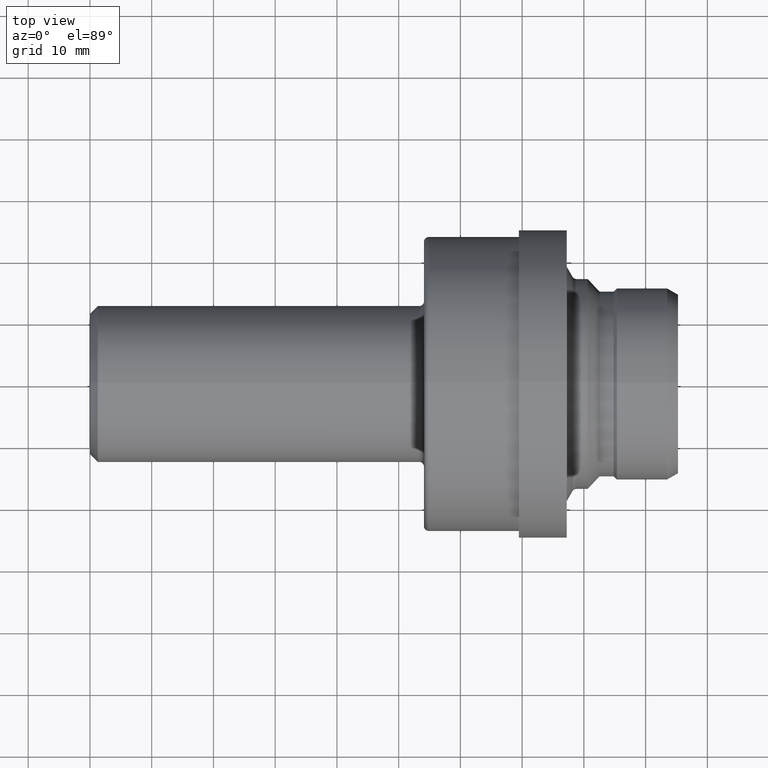
[diagram: clean part render]
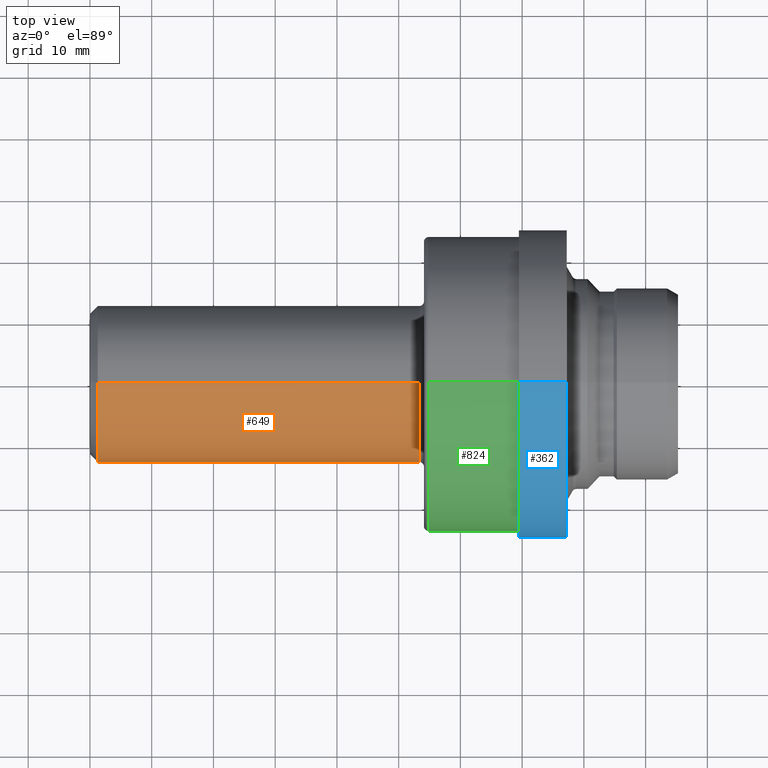
[diagram: same view with three faces highlighted in distinct colors, each labeled with its STEP entity id]
A machine part, top view with three faces highlighted in distinct colors.
Their STEP definitions:

[orange] entity #649 — the highlighted cylindrical surface (partial cylindrical patch) has radius 12.6962 mm, axis along (-1, -0, -0).
#3 = CARTESIAN_POINT ( 'NONE',  ( 2.100000000000000089, 6.305094045410148139E-17, -0.4998500000000000165 ) ) ;
#11 = CARTESIAN_POINT ( 'NONE',  ( 0.0000000000000000000, 0.0000000000000000000, 0.0000000000000000000 ) ) ;
#40 = LINE ( 'NONE', #535, #417 ) ;
#50 = LINE ( 'NONE', #222, #815 ) ;
#56 = EDGE_CURVE ( 'NONE', #661, #425, #424, .T. ) ;
#63 = EDGE_CURVE ( 'NONE', #466, #115, #706, .T. ) ;
#115 = VERTEX_POINT ( 'NONE', #545 ) ;
#145 = CYLINDRICAL_SURFACE ( 'NONE', #853, 0.4998500000000000165 ) ;
#222 = CARTESIAN_POINT ( 'NONE',  ( 0.0000000000000000000, 0.0000000000000000000, 0.4998500000000000165 ) ) ;
#269 = ORIENTED_EDGE ( 'NONE', *, *, #63, .F. ) ;
#274 = AXIS2_PLACEMENT_3D ( 'NONE', #321, #600, #602 ) ;
#321 = CARTESIAN_POINT ( 'NONE',  ( 0.05000000000000000278, 0.0000000000000000000, 0.0000000000000000000 ) ) ;
#377 = ORIENTED_EDGE ( 'NONE', *, *, #56, .T. ) ;
#399 = DIRECTION ( 'NONE',  ( -1.000000000000000000, -0.0000000000000000000, -0.0000000000000000000 ) ) ;
#412 = CARTESIAN_POINT ( 'NONE',  ( 2.100000000000000089, 0.0000000000000000000, 0.0000000000000000000 ) ) ;
#417 = VECTOR ( 'NONE', #522, 39.37007874015748143 ) ;
#424 = CIRCLE ( 'NONE', #634, 0.4998500000000000165 ) ;
#425 = VERTEX_POINT ( 'NONE', #575 ) ;
#446 = EDGE_LOOP ( 'NONE', ( #520, #377, #767, #269 ) ) ;
#466 = VERTEX_POINT ( 'NONE', #536 ) ;
#473 = FACE_OUTER_BOUND ( 'NONE', #446, .T. ) ;
#497 = DIRECTION ( 'NONE',  ( -1.000000000000000000, -0.0000000000000000000, -0.0000000000000000000 ) ) ;
#508 = EDGE_CURVE ( 'NONE', #661, #466, #40, .T. ) ;
#520 = ORIENTED_EDGE ( 'NONE', *, *, #508, .F. ) ;
#522 = DIRECTION ( 'NONE',  ( -1.000000000000000000, -0.0000000000000000000, -0.0000000000000000000 ) ) ;
#535 = CARTESIAN_POINT ( 'NONE',  ( 0.0000000000000000000, 6.121397025538045565E-17, -0.4998500000000000165 ) ) ;
#536 = CARTESIAN_POINT ( 'NONE',  ( 0.05000000000000000278, 6.121397025538045565E-17, -0.4998500000000000165 ) ) ;
#545 = CARTESIAN_POINT ( 'NONE',  ( 0.05000000000000000278, 0.0000000000000000000, 0.4998500000000000165 ) ) ;
#575 = CARTESIAN_POINT ( 'NONE',  ( 2.100000000000000089, 0.0000000000000000000, 0.4998500000000000165 ) ) ;
#600 = DIRECTION ( 'NONE',  ( -1.000000000000000000, -0.0000000000000000000, -0.0000000000000000000 ) ) ;
#602 = DIRECTION ( 'NONE',  ( 0.0000000000000000000, 0.0000000000000000000, 1.000000000000000000 ) ) ;
#622 = DIRECTION ( 'NONE',  ( 0.0000000000000000000, 0.0000000000000000000, 1.000000000000000000 ) ) ;
#634 = AXIS2_PLACEMENT_3D ( 'NONE', #412, #399, #622 ) ;
#649 = ADVANCED_FACE ( 'NONE', ( #473 ), #145, .T. ) ;
#661 = VERTEX_POINT ( 'NONE', #3 ) ;
#692 = EDGE_CURVE ( 'NONE', #425, #115, #50, .T. ) ;
#706 = CIRCLE ( 'NONE', #274, 0.4998500000000000165 ) ;
#730 = DIRECTION ( 'NONE',  ( 0.0000000000000000000, 0.0000000000000000000, 1.000000000000000000 ) ) ;
#767 = ORIENTED_EDGE ( 'NONE', *, *, #692, .T. ) ;
#815 = VECTOR ( 'NONE', #497, 39.37007874015748143 ) ;
#853 = AXIS2_PLACEMENT_3D ( 'NONE', #11, #856, #730 ) ;
#856 = DIRECTION ( 'NONE',  ( -1.000000000000000000, -0.0000000000000000000, -0.0000000000000000000 ) ) ;

[blue] entity #362 — the highlighted cylindrical surface (partial cylindrical patch) has radius 24.9555 mm, axis along (-1, -0, -0).
#60 = VERTEX_POINT ( 'NONE', #387 ) ;
#80 = VERTEX_POINT ( 'NONE', #604 ) ;
#99 = DIRECTION ( 'NONE',  ( -1.000000000000000000, -0.0000000000000000000, -0.0000000000000000000 ) ) ;
#112 = ORIENTED_EDGE ( 'NONE', *, *, #741, .F. ) ;
#113 = VECTOR ( 'NONE', #164, 39.37007874015748143 ) ;
#164 = DIRECTION ( 'NONE',  ( -1.000000000000000000, -0.0000000000000000000, -0.0000000000000000000 ) ) ;
#202 = CYLINDRICAL_SURFACE ( 'NONE', #672, 0.9825000000000001510 ) ;
#203 = EDGE_CURVE ( 'NONE', #474, #561, #665, .T. ) ;
#215 = DIRECTION ( 'NONE',  ( -1.000000000000000000, -0.0000000000000000000, -0.0000000000000000000 ) ) ;
#219 = EDGE_CURVE ( 'NONE', #80, #561, #375, .T. ) ;
#230 = CARTESIAN_POINT ( 'NONE',  ( 3.040000000000000480, 0.0000000000000000000, 0.0000000000000000000 ) ) ;
#319 = FACE_OUTER_BOUND ( 'NONE', #848, .T. ) ;
#327 = ORIENTED_EDGE ( 'NONE', *, *, #219, .T. ) ;
#333 = EDGE_CURVE ( 'NONE', #60, #80, #550, .T. ) ;
#351 = AXIS2_PLACEMENT_3D ( 'NONE', #368, #774, #700 ) ;
#362 = ADVANCED_FACE ( 'NONE', ( #319 ), #202, .T. ) ;
#368 = CARTESIAN_POINT ( 'NONE',  ( 2.735000000000000320, 0.0000000000000000000, 0.0000000000000000000 ) ) ;
#375 = LINE ( 'NONE', #729, #609 ) ;
#387 = CARTESIAN_POINT ( 'NONE',  ( 3.040000000000000480, 1.203215480162274635E-16, -0.9825000000000001510 ) ) ;
#404 = AXIS2_PLACEMENT_3D ( 'NONE', #230, #215, #858 ) ;
#474 = VERTEX_POINT ( 'NONE', #805 ) ;
#488 = CARTESIAN_POINT ( 'NONE',  ( 2.735000000000000320, 0.0000000000000000000, 0.9825000000000001510 ) ) ;
#532 = CARTESIAN_POINT ( 'NONE',  ( 0.0000000000000000000, 0.0000000000000000000, 0.0000000000000000000 ) ) ;
#550 = CIRCLE ( 'NONE', #404, 0.9825000000000001510 ) ;
#561 = VERTEX_POINT ( 'NONE', #488 ) ;
#584 = DIRECTION ( 'NONE',  ( -1.000000000000000000, -0.0000000000000000000, -0.0000000000000000000 ) ) ;
#589 = ORIENTED_EDGE ( 'NONE', *, *, #203, .F. ) ;
#604 = CARTESIAN_POINT ( 'NONE',  ( 3.040000000000000480, 0.0000000000000000000, 0.9825000000000001510 ) ) ;
#609 = VECTOR ( 'NONE', #584, 39.37007874015748143 ) ;
#644 = ORIENTED_EDGE ( 'NONE', *, *, #333, .T. ) ;
#665 = CIRCLE ( 'NONE', #351, 0.9825000000000001510 ) ;
#666 = DIRECTION ( 'NONE',  ( 0.0000000000000000000, 0.0000000000000000000, 1.000000000000000000 ) ) ;
#672 = AXIS2_PLACEMENT_3D ( 'NONE', #532, #99, #666 ) ;
#700 = DIRECTION ( 'NONE',  ( 0.0000000000000000000, 0.0000000000000000000, 1.000000000000000000 ) ) ;
#729 = CARTESIAN_POINT ( 'NONE',  ( 0.0000000000000000000, 0.0000000000000000000, 0.9825000000000001510 ) ) ;
#741 = EDGE_CURVE ( 'NONE', #60, #474, #847, .T. ) ;
#774 = DIRECTION ( 'NONE',  ( -1.000000000000000000, -0.0000000000000000000, -0.0000000000000000000 ) ) ;
#805 = CARTESIAN_POINT ( 'NONE',  ( 2.735000000000000320, 1.203215480162274635E-16, -0.9825000000000001510 ) ) ;
#847 = LINE ( 'NONE', #854, #113 ) ;
#848 = EDGE_LOOP ( 'NONE', ( #112, #644, #327, #589 ) ) ;
#854 = CARTESIAN_POINT ( 'NONE',  ( 0.0000000000000000000, 1.203215480162274635E-16, -0.9825000000000001510 ) ) ;
#858 = DIRECTION ( 'NONE',  ( 0.0000000000000000000, 0.0000000000000000000, 1.000000000000000000 ) ) ;

[green] entity #824 — the highlighted cylindrical surface (partial cylindrical patch) has radius 23.8125 mm, axis along (-1, -0, -0).
#18 = VERTEX_POINT ( 'NONE', #114 ) ;
#26 = VECTOR ( 'NONE', #365, 39.37007874015748143 ) ;
#97 = ORIENTED_EDGE ( 'NONE', *, *, #540, .T. ) ;
#114 = CARTESIAN_POINT ( 'NONE',  ( 2.159999999999999698, 0.0000000000000000000, 0.9375000000000000000 ) ) ;
#194 = CIRCLE ( 'NONE', #524, 0.9375000000000000000 ) ;
#206 = LINE ( 'NONE', #803, #26 ) ;
#211 = DIRECTION ( 'NONE',  ( -1.000000000000000000, -0.0000000000000000000, -0.0000000000000000000 ) ) ;
#227 = FACE_OUTER_BOUND ( 'NONE', #639, .T. ) ;
#244 = AXIS2_PLACEMENT_3D ( 'NONE', #311, #440, #450 ) ;
#248 = VERTEX_POINT ( 'NONE', #356 ) ;
#282 = EDGE_CURVE ( 'NONE', #820, #248, #297, .T. ) ;
#297 = CIRCLE ( 'NONE', #244, 0.9375000000000000000 ) ;
#298 = CARTESIAN_POINT ( 'NONE',  ( 2.159999999999999698, 0.0000000000000000000, 0.0000000000000000000 ) ) ;
#301 = CARTESIAN_POINT ( 'NONE',  ( 0.0000000000000000000, 1.148106374200643740E-16, -0.9375000000000000000 ) ) ;
#305 = DIRECTION ( 'NONE',  ( -1.000000000000000000, -0.0000000000000000000, -0.0000000000000000000 ) ) ;
#311 = CARTESIAN_POINT ( 'NONE',  ( 2.735000000000000320, 0.0000000000000000000, 0.0000000000000000000 ) ) ;
#328 = CARTESIAN_POINT ( 'NONE',  ( 0.0000000000000000000, 0.0000000000000000000, 0.0000000000000000000 ) ) ;
#353 = VERTEX_POINT ( 'NONE', #511 ) ;
#356 = CARTESIAN_POINT ( 'NONE',  ( 2.735000000000000320, 0.0000000000000000000, 0.9375000000000000000 ) ) ;
#365 = DIRECTION ( 'NONE',  ( -1.000000000000000000, -0.0000000000000000000, -0.0000000000000000000 ) ) ;
#391 = CYLINDRICAL_SURFACE ( 'NONE', #614, 0.9375000000000000000 ) ;
#414 = CARTESIAN_POINT ( 'NONE',  ( 2.735000000000000320, 1.148106374200643740E-16, -0.9375000000000000000 ) ) ;
#440 = DIRECTION ( 'NONE',  ( -1.000000000000000000, -0.0000000000000000000, -0.0000000000000000000 ) ) ;
#450 = DIRECTION ( 'NONE',  ( 0.0000000000000000000, 0.0000000000000000000, 1.000000000000000000 ) ) ;
#492 = DIRECTION ( 'NONE',  ( 0.0000000000000000000, 0.0000000000000000000, 1.000000000000000000 ) ) ;
#511 = CARTESIAN_POINT ( 'NONE',  ( 2.159999999999999698, 1.148106374200643740E-16, -0.9375000000000000000 ) ) ;
#518 = ORIENTED_EDGE ( 'NONE', *, *, #708, .F. ) ;
#524 = AXIS2_PLACEMENT_3D ( 'NONE', #298, #728, #724 ) ;
#540 = EDGE_CURVE ( 'NONE', #248, #18, #206, .T. ) ;
#614 = AXIS2_PLACEMENT_3D ( 'NONE', #328, #211, #492 ) ;
#616 = VECTOR ( 'NONE', #305, 39.37007874015748143 ) ;
#639 = EDGE_LOOP ( 'NONE', ( #691, #654, #97, #518 ) ) ;
#654 = ORIENTED_EDGE ( 'NONE', *, *, #282, .T. ) ;
#686 = EDGE_CURVE ( 'NONE', #820, #353, #797, .T. ) ;
#691 = ORIENTED_EDGE ( 'NONE', *, *, #686, .F. ) ;
#708 = EDGE_CURVE ( 'NONE', #353, #18, #194, .T. ) ;
#724 = DIRECTION ( 'NONE',  ( 0.0000000000000000000, 0.0000000000000000000, 1.000000000000000000 ) ) ;
#728 = DIRECTION ( 'NONE',  ( -1.000000000000000000, -0.0000000000000000000, -0.0000000000000000000 ) ) ;
#797 = LINE ( 'NONE', #301, #616 ) ;
#803 = CARTESIAN_POINT ( 'NONE',  ( 0.0000000000000000000, 0.0000000000000000000, 0.9375000000000000000 ) ) ;
#820 = VERTEX_POINT ( 'NONE', #414 ) ;
#824 = ADVANCED_FACE ( 'NONE', ( #227 ), #391, .T. ) ;